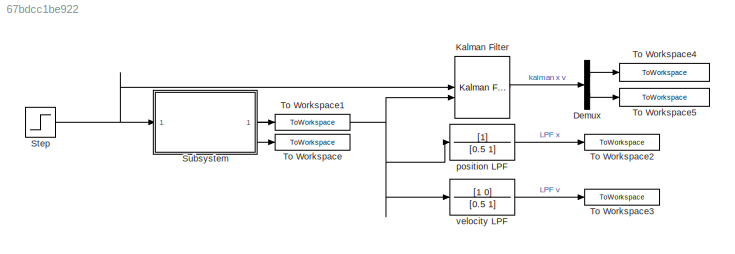
MODEL slx_67bdcc1be922
KIND model
CONFIG AbsTol = auto
CONFIG EnableMultiTasking = off
CONFIG FixedStep = 0.01
CONFIG InitFcn = m = 1; % kg\nk = 1; % N/m\nb = 0.2;%Ns/m\nA =  [0, 1;\n    -k/m, -b/m];\nB = [0;\n    1/m];\nC = [1, 0];\nD = 0;
CONFIG MaxStep = auto
CONFIG MinStep = auto
CONFIG RelTol = 1e-3
CONFIG SampleTimeConstraint = Unconstrained
CONFIG SolverName = ode4
CONFIG StartTime = 0.0
CONFIG StopTime = 50
BLOCK [Demux] Demux
  Outputs = 2
BLOCK [Reference] Kalman Filter  REF=ctrlSharedLib/Kalman Filter
  LibrarySourceBlock = cstblocks/State Estimation/Kalman Filter
  SourceBlock = ctrlSharedLib/Kalman Filter
  SourceType = ctrlKalmanFilter
BLOCK [Step] Step
  SampleTime = 0
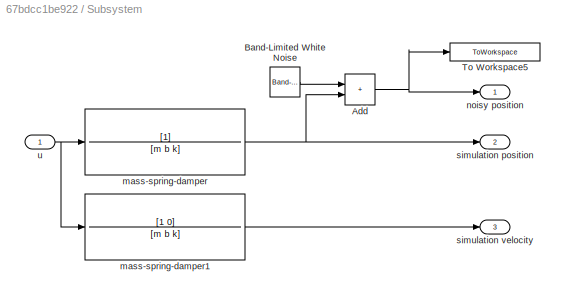
BLOCK [SubSystem] Subsystem
BLOCK [Sum] Subsystem/Add
  IconShape = rectangular
BLOCK [Reference] Subsystem/Band-Limited White Noise  REF=simulink/Sources/Band-Limited
White Noise
  SourceBlock = simulink/Sources/Band-Limited\nWhite Noise
  SourceType = Band-Limited White Noise.
BLOCK [ToWorkspace] Subsystem/To Workspace5
  FixptAsFi = on
  MaxDataPoints = inf
  SampleTime = -1
  SaveFormat = Timeseries
  VariableName = noisy_position
BLOCK [TransferFcn] Subsystem/mass-spring-damper
  Denominator = [m b k]
BLOCK [TransferFcn] Subsystem/mass-spring-damper1
  Denominator = [m b k]
  Numerator = [1 0]
BLOCK [Outport] Subsystem/noisy position
BLOCK [Outport] Subsystem/simulation position
  Port = 2
BLOCK [Outport] Subsystem/simulation velocity
  Port = 3
BLOCK [Inport] Subsystem/u
BLOCK [ToWorkspace] To Workspace
  FixptAsFi = on
  MaxDataPoints = inf
  SampleTime = -1
  SaveFormat = Timeseries
  VariableName = velocity
BLOCK [ToWorkspace] To Workspace1
  FixptAsFi = on
  MaxDataPoints = inf
  SampleTime = -1
  SaveFormat = Timeseries
  VariableName = position
BLOCK [ToWorkspace] To Workspace2
  FixptAsFi = on
  MaxDataPoints = inf
  SampleTime = -1
  SaveFormat = Timeseries
  VariableName = LPF_position
BLOCK [ToWorkspace] To Workspace3
  FixptAsFi = on
  MaxDataPoints = inf
  SampleTime = -1
  SaveFormat = Timeseries
  VariableName = LPF_velocity
BLOCK [ToWorkspace] To Workspace4
  FixptAsFi = on
  MaxDataPoints = inf
  SampleTime = -1
  SaveFormat = Timeseries
  VariableName = Kalman_position
BLOCK [ToWorkspace] To Workspace5
  FixptAsFi = on
  MaxDataPoints = inf
  SampleTime = -1
  SaveFormat = Timeseries
  VariableName = Kalman_velocity
BLOCK [TransferFcn] position LPF
  Denominator = [0.5 1]
BLOCK [TransferFcn] velocity LPF
  Denominator = [0.5 1]
  Numerator = [1 0]
LINE Demux:1 -> To Workspace4:1
LINE Demux:2 -> To Workspace5:1
LINE Kalman Filter:1 -> Demux:1
NET Step:1 -> Kalman Filter:1, Subsystem:1
NET Subsystem/Add:1 -> Subsystem/To Workspace5:1, Subsystem/noisy position:1
LINE Subsystem/Band-Limited White Noise:1 -> Subsystem/Add:1
LINE Subsystem/mass-spring-damper1:1 -> Subsystem/simulation velocity:1
NET Subsystem/mass-spring-damper:1 -> Subsystem/Add:2, Subsystem/simulation position:1
NET Subsystem/u:1 -> Subsystem/mass-spring-damper1:1, Subsystem/mass-spring-damper:1
NET Subsystem:1 -> Kalman Filter:2, position LPF:1, velocity LPF:1
LINE Subsystem:2 -> To Workspace1:1
LINE Subsystem:3 -> To Workspace:1
LINE position LPF:1 -> To Workspace2:1
LINE velocity LPF:1 -> To Workspace3:1
note: NET lines group one-source signal fan-out (src -> all destinations, sorted); 1:1 wires keep LINE
